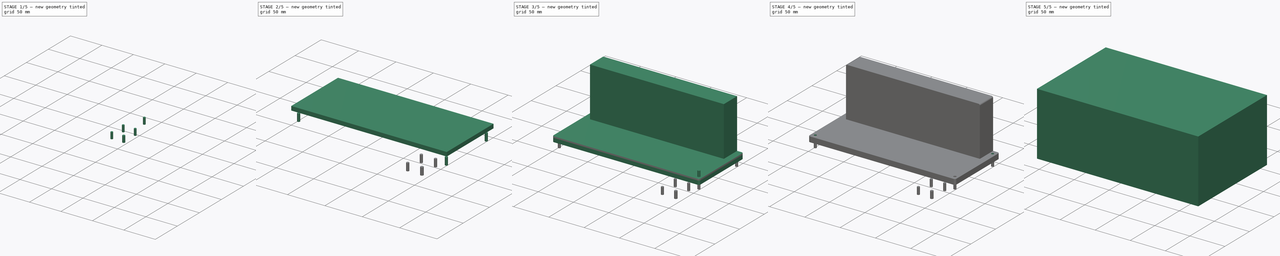
[diagram: build sequence overview — one tinted view per stage of 5, left to right]
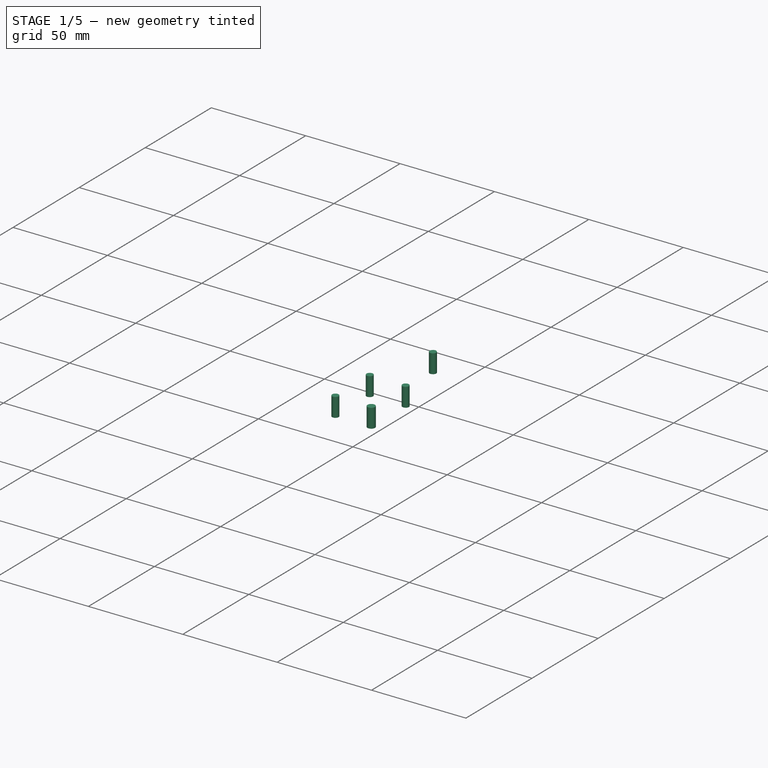
[diagram: stage 1 of 5 — iso view after this stage's code; geometry added in this stage tinted green]
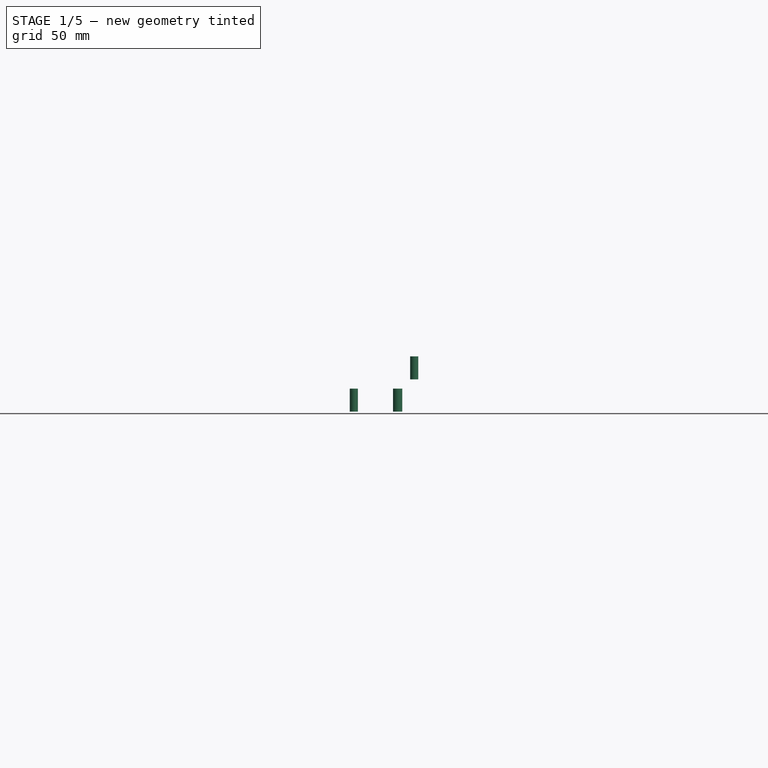
[diagram: stage 1 of 5 — front view after this stage's code; geometry added in this stage tinted green]
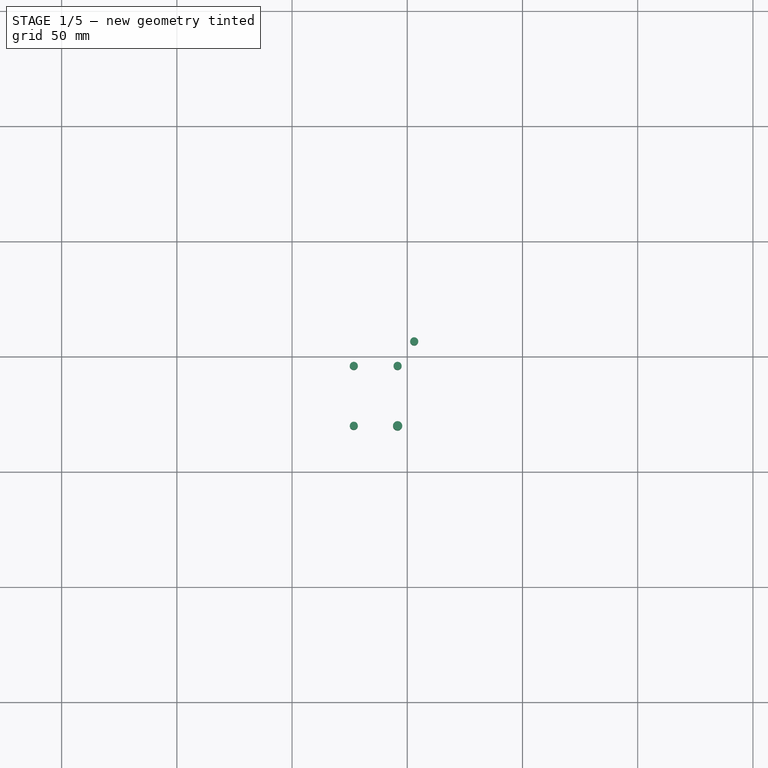
[diagram: stage 1 of 5 — top view after this stage's code; geometry added in this stage tinted green]
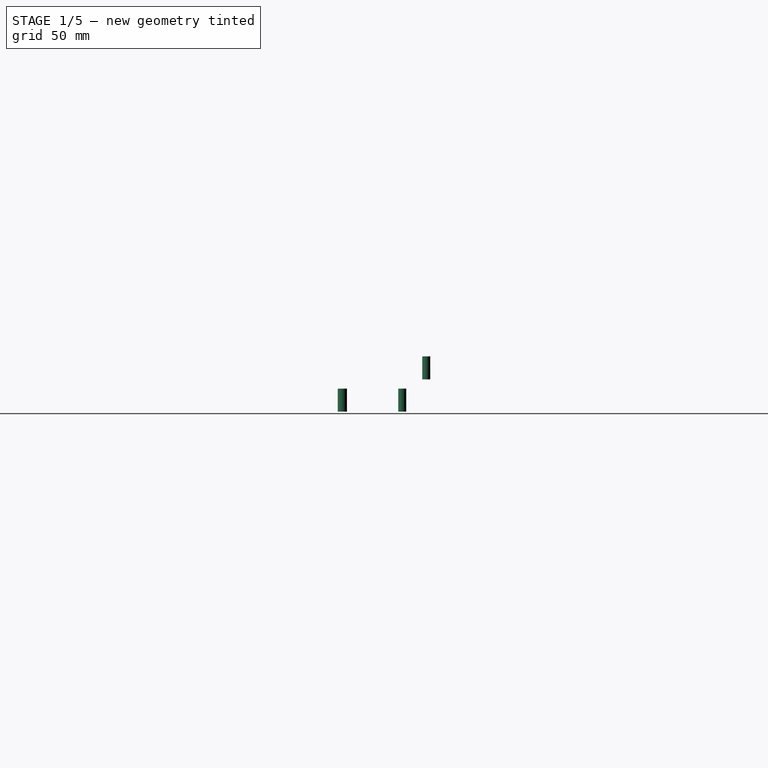
[diagram: stage 1 of 5 — right view after this stage's code; geometry added in this stage tinted green]
FCSTD DOCUMENT  (FreeCAD 0.21R33668 +7 (Git))
Label: OzoneModule_July_08_2024
License: All rights reserved
LicenseURL: https://en.wikipedia.org/wiki/All_rights_reserved
objects: Part::Cylinder×12, Part::Feature×9, Part::MultiFuse×7, Part::Box×4, Part::Fillet×4, Part::Cut×2, App::Part×1, Sketcher::SketchObject×1, Part::Extrusion×1
note: 40 computed .brp shape members not serialized (recipe doc carries the construction recipe); baked Part::Feature solids carry a one-line shape summary decoded from their .brp

FEATURE [Part::Cylinder] Cylinder007
  Angle = 360
  AttacherType = Attacher::AttachEngine3D
  FirstAngle = 0
  Height = 10
  Placement = pos=(203,6.4,0) rot=(0,0,1;0rad)
  Radius = 1.75
  SecondAngle = 0
FEATURE [Part::Cylinder] Cylinder008
  Angle = 360
  AttacherType = Attacher::AttachEngine3D
  FirstAngle = 0
  Height = 10
  Placement = pos=(195.8,-4,0) rot=(0,0,1;0rad)
  Radius = 1.75
  SecondAngle = 0
FEATURE [Part::Cylinder] Cylinder009
  Angle = 360
  AttacherType = Attacher::AttachEngine3D
  FirstAngle = 0
  Height = 10
  Placement = pos=(176.8,-4,0) rot=(0,0,1;0rad)
  Radius = 1.75
  SecondAngle = 0
FEATURE [Part::Cylinder] Cylinder010
  Angle = 360
  AttacherType = Attacher::AttachEngine3D
  FirstAngle = 0
  Height = 10
  Placement = pos=(176.8,-30,0) rot=(0,0,1;0rad)
  Radius = 1.75
  SecondAngle = 0
FEATURE [Part::Cylinder] Cylinder011
  Angle = 360
  AttacherType = Attacher::AttachEngine3D
  FirstAngle = 0
  Height = 10
  Placement = pos=(195.8,-30,0) rot=(0,0,1;0rad)
  Radius = 2
  SecondAngle = 0
FEATURE [Part::MultiFuse] Fusion005  label="Base_hole002"
  Placement = pos=(0,0,-14) rot=(0,0,1;0rad)
  Shapes = -> [Cylinder008,Cylinder009,Cylinder010,Cylinder011]
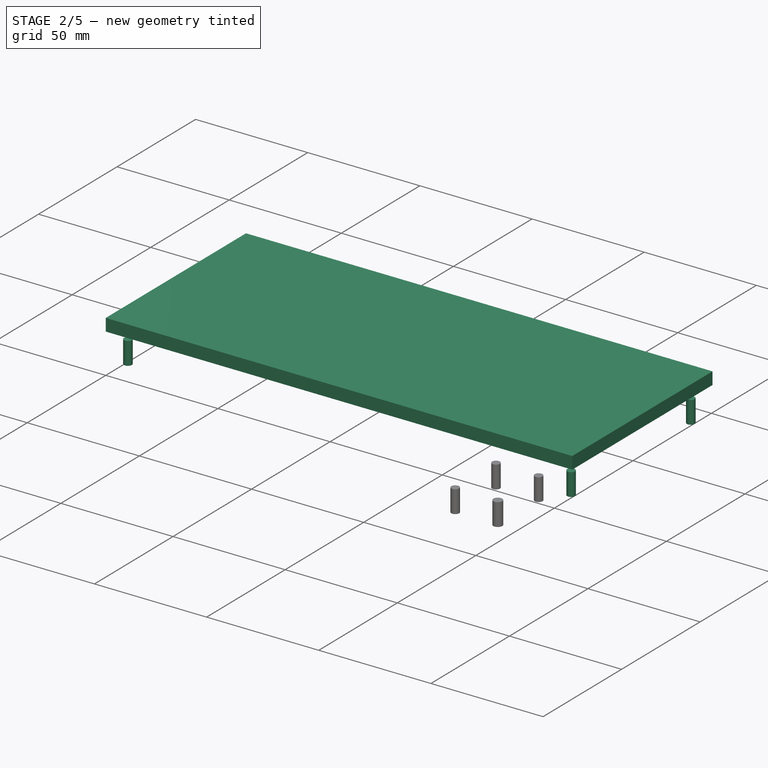
[diagram: stage 2 of 5 — iso view after this stage's code; geometry added in this stage tinted green]
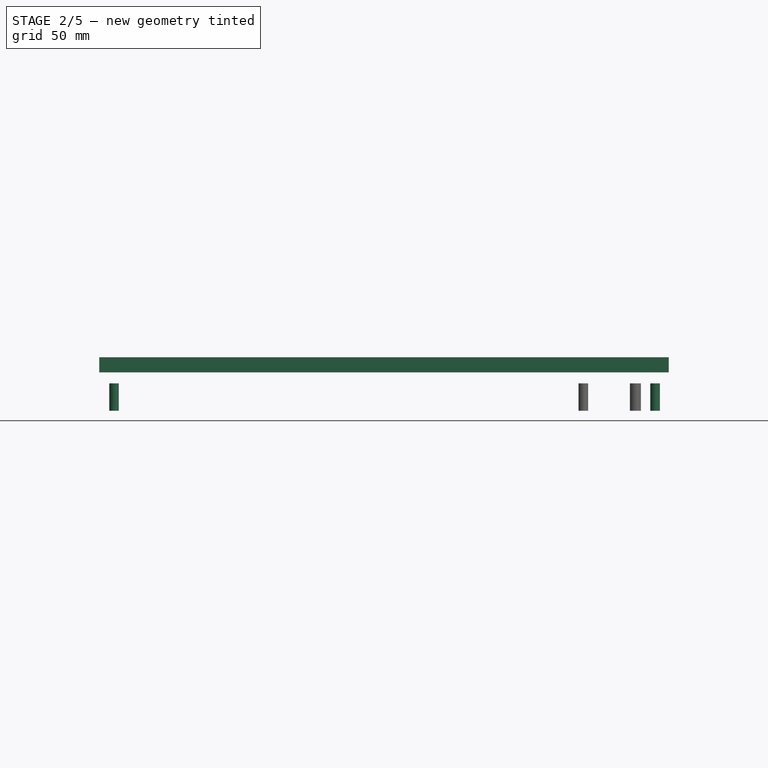
[diagram: stage 2 of 5 — front view after this stage's code; geometry added in this stage tinted green]
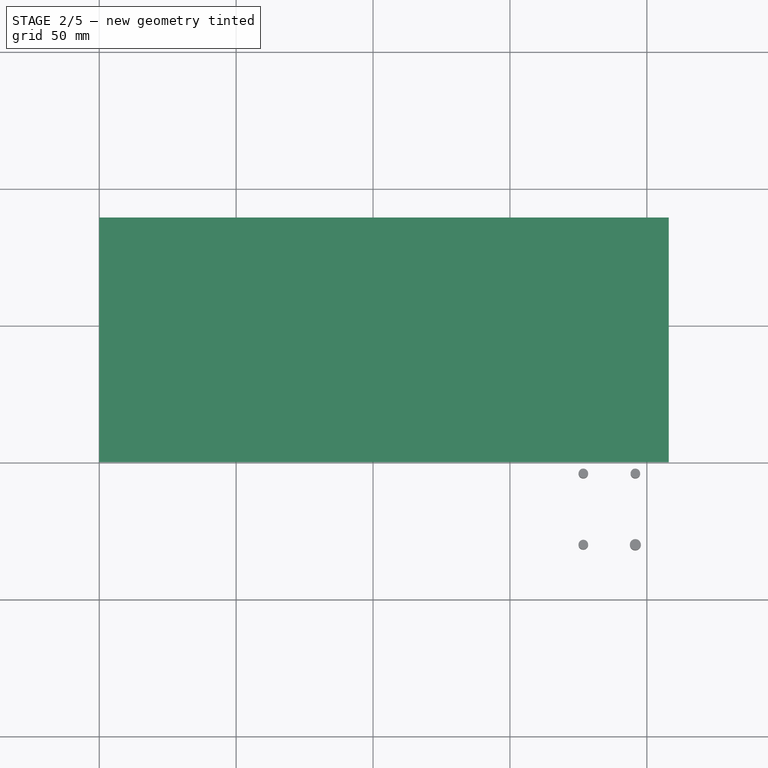
[diagram: stage 2 of 5 — top view after this stage's code; geometry added in this stage tinted green]
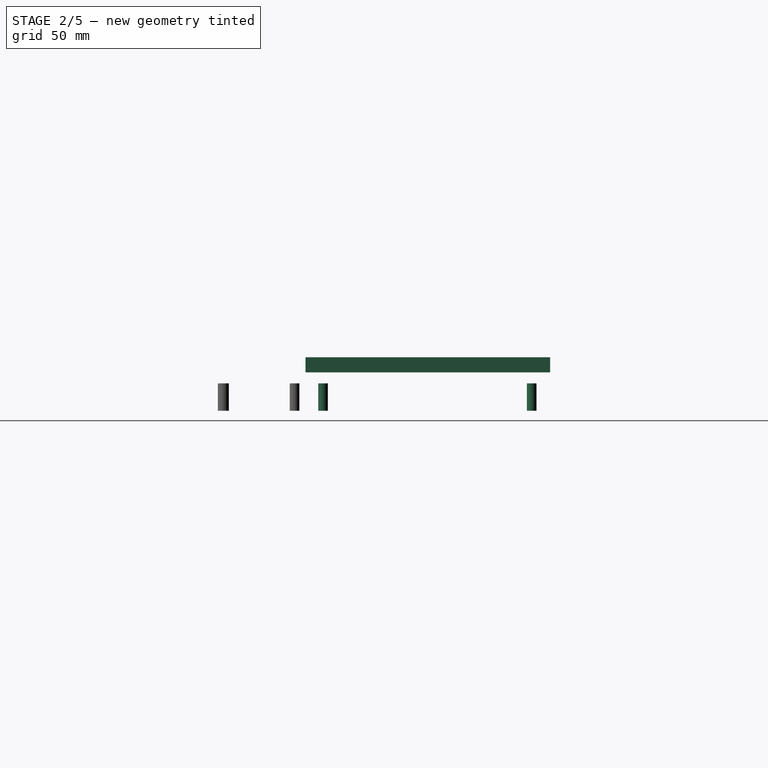
[diagram: stage 2 of 5 — right view after this stage's code; geometry added in this stage tinted green]
FEATURE [Part::Feature] Part__Feature004  label="051659-8_05358-PUMPE-_SW0001"
  shape: bbox 32.37 x 50.78 x 84.45 mm, 991 faces (baked)
FEATURE [Part::Feature] Part__Feature005  label="051659-8_05358-PUMPE-_SW0002"
  shape: bbox 4 x 4 x 0.751 mm, 31 faces (baked)
FEATURE [Part::Feature] Part__Feature006  label="051659-8_05358-PUMPE-_SW0003"
  shape: bbox 4 x 4 x 0.751 mm, 31 faces (baked)
FEATURE [Part::Feature] Part__Feature007  label="051659-8_05358-PUMPE-_SW0004"
  shape: bbox 4 x 4 x 0.751 mm, 31 faces (baked)
FEATURE [Part::Feature] Part__Feature008  label="051659-8_05358-PUMPE-_SW0005"
  shape: bbox 4 x 4 x 0.751 mm, 31 faces (baked)
FEATURE [App::Part] _51659_8_05358_PUMPE__SW0001  label="Pump"
  Group = -> [Part__Feature004,Part__Feature005,Part__Feature006,Part__Feature007,Part__Feature008]
  Origin = -> Origin
  Placement = pos=(183,-17,11) rot=(0.57735,0.57735,0.57735;2.0944rad)
FEATURE [Part::Box] Box002  label="Base_Board001"
  AttacherType = Attacher::AttachEngine3D
  Height = 5.5
  Length = 208
  Width = 89.3
FEATURE [Part::Cylinder] Cylinder004
  Angle = 360
  AttacherType = Attacher::AttachEngine3D
  FirstAngle = 0
  Height = 10
  Placement = pos=(5.4,6.4,0) rot=(0,0,1;0rad)
  Radius = 1.75
  SecondAngle = 0
FEATURE [Part::Cylinder] Cylinder005
  Angle = 360
  AttacherType = Attacher::AttachEngine3D
  FirstAngle = 0
  Height = 10
  Placement = pos=(5.4,82.6,0) rot=(0,0,1;0rad)
  Radius = 1.75
  SecondAngle = 0
FEATURE [Part::Cylinder] Cylinder006
  Angle = 360
  AttacherType = Attacher::AttachEngine3D
  FirstAngle = 0
  Height = 10
  Placement = pos=(203,82.6,0) rot=(0,0,1;0rad)
  Radius = 1.75
  SecondAngle = 0
FEATURE [Part::MultiFuse] Fusion004  label="Base_hole001"
  Placement = pos=(0,0,-14) rot=(0,0,1;0rad)
  Shapes = -> [Cylinder004,Cylinder005,Cylinder006,Cylinder007]
FEATURE [Part::MultiFuse] Fusion006  label="Base_plate_hole"
  Shapes = -> [Fusion004,Fusion005]
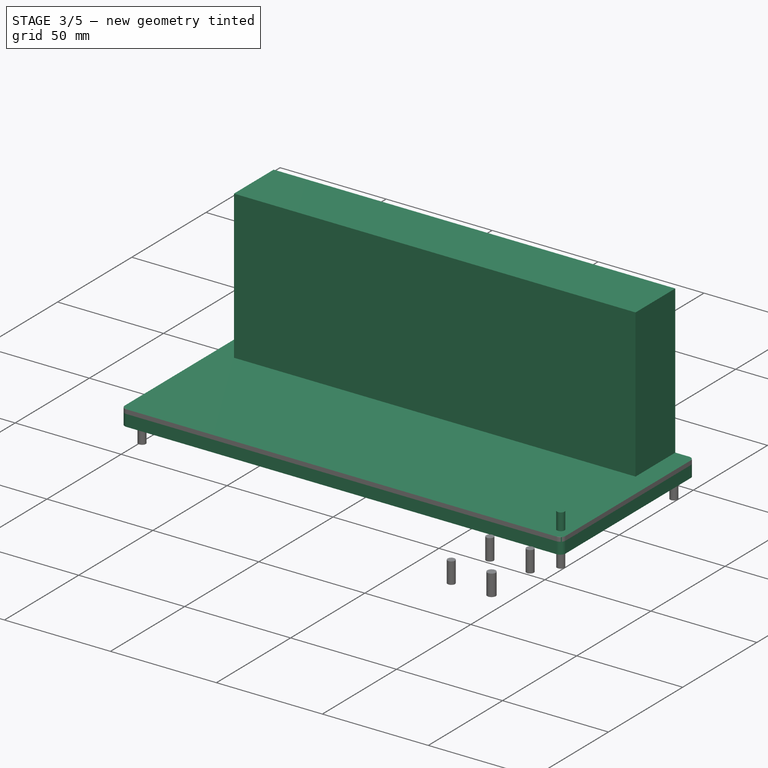
[diagram: stage 3 of 5 — iso view after this stage's code; geometry added in this stage tinted green]
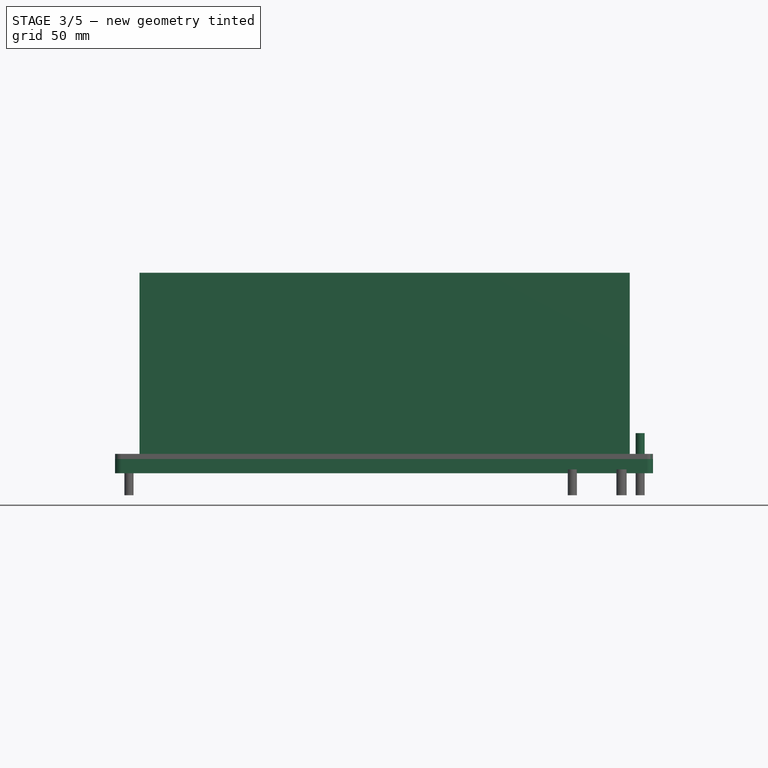
[diagram: stage 3 of 5 — front view after this stage's code; geometry added in this stage tinted green]
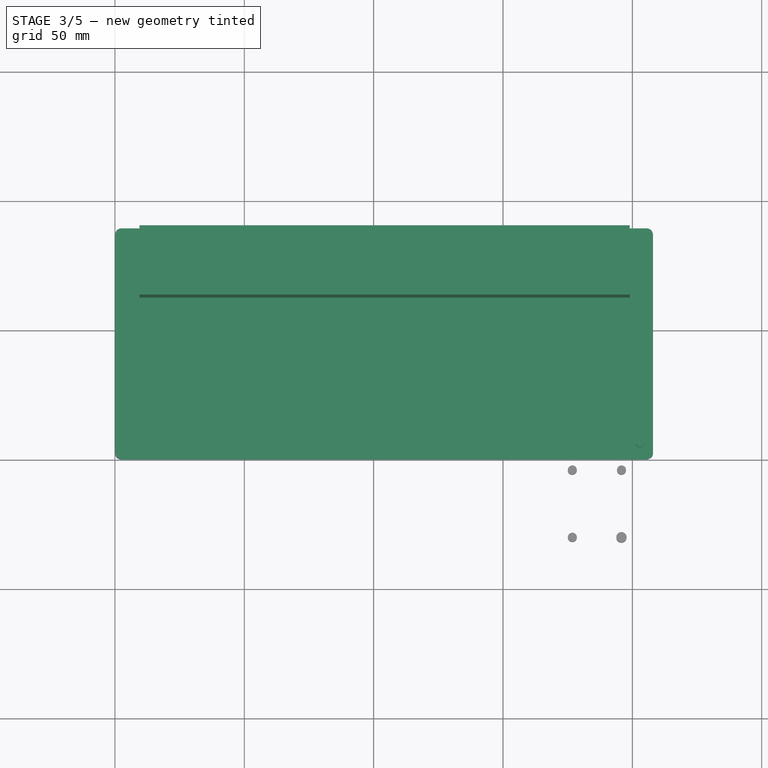
[diagram: stage 3 of 5 — top view after this stage's code; geometry added in this stage tinted green]
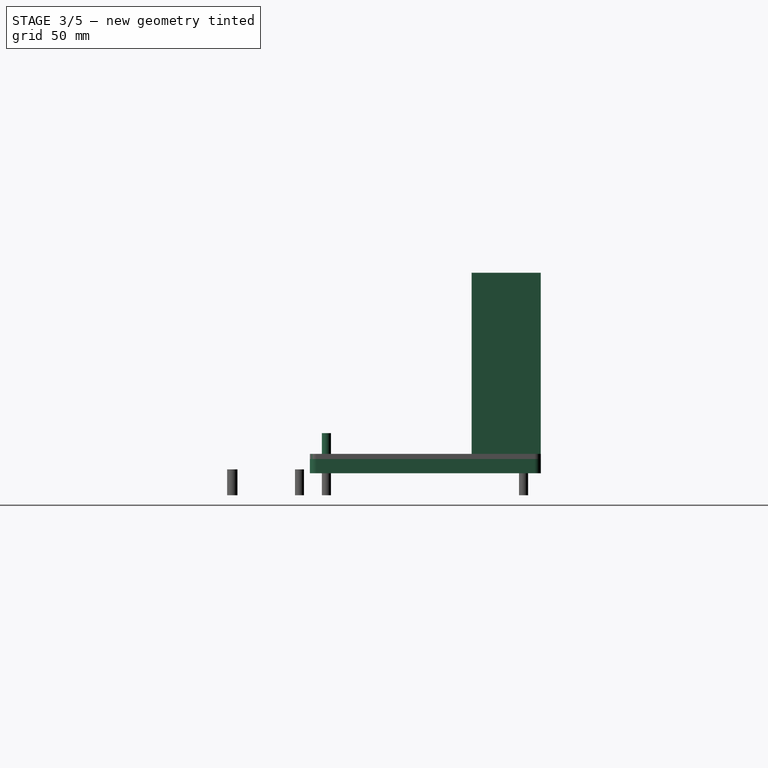
[diagram: stage 3 of 5 — right view after this stage's code; geometry added in this stage tinted green]
FEATURE [Part::Box] Box  label="Base_Board"
  AttacherType = Attacher::AttachEngine3D
  Height = 2
  Length = 208
  Width = 89.3
FEATURE [Part::Fillet] Fillet  label="Base"
  Base = -> Box
  Edges = 4 edges r=2.5: [Edge1,Edge3,Edge5,Edge7]
FEATURE [Part::Box] Box001  label="Ozone_monitor"
  AttacherType = Attacher::AttachEngine3D
  Height = 70
  Length = 189.5
  Placement = pos=(9.5,62.5,2) rot=(0,0,1;0rad)
  Width = 26.75
FEATURE [Part::Cylinder] Cylinder003
  Angle = 360
  AttacherType = Attacher::AttachEngine3D
  FirstAngle = 0
  Height = 10
  Placement = pos=(203,6.4,0) rot=(0,0,1;0rad)
  Radius = 1.75
  SecondAngle = 0
FEATURE [Part::MultiFuse] Fusion001  label="Ozone"
  Shapes = -> [Fillet,Box001]
FEATURE [Part::Fillet] Fillet002  label="BaseClearance"
  Base = -> Box002
  Edges = 4 edges r=2.5: [Edge1,Edge3,Edge5,Edge7]
  Placement = pos=(0,0,-5.5) rot=(0,0,1;0rad)
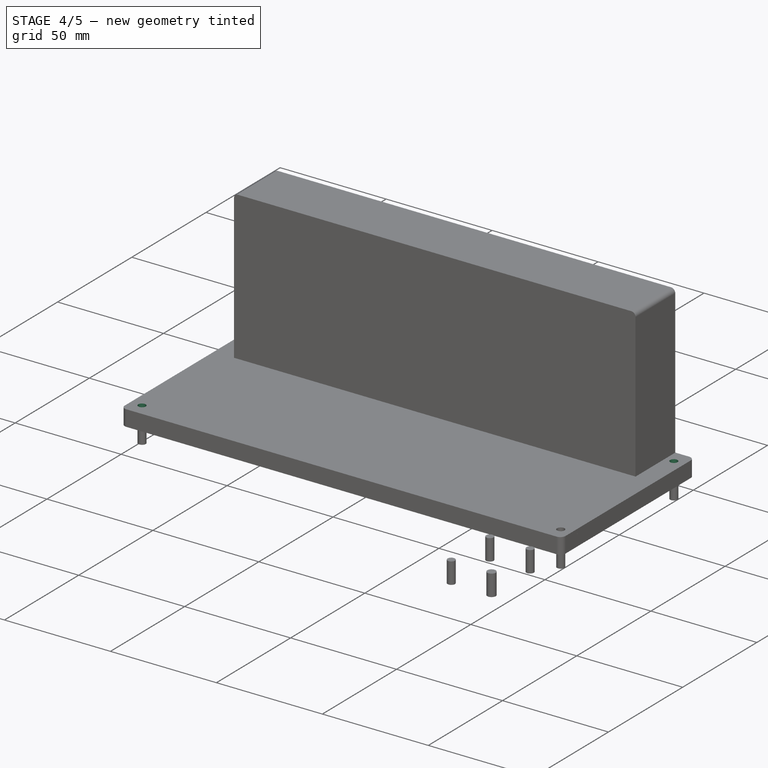
[diagram: stage 4 of 5 — iso view after this stage's code; geometry added in this stage tinted green]
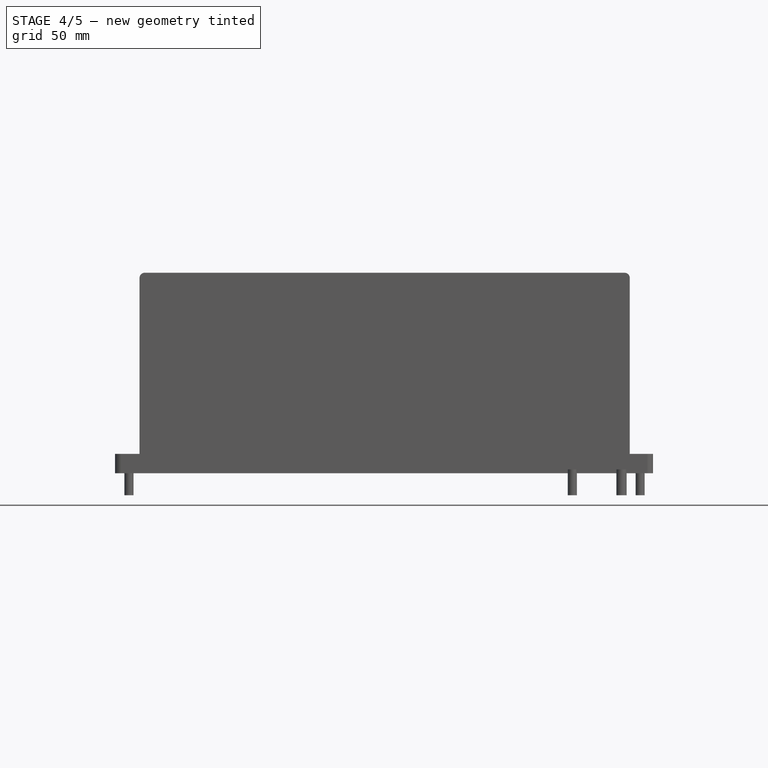
[diagram: stage 4 of 5 — front view after this stage's code; geometry added in this stage tinted green]
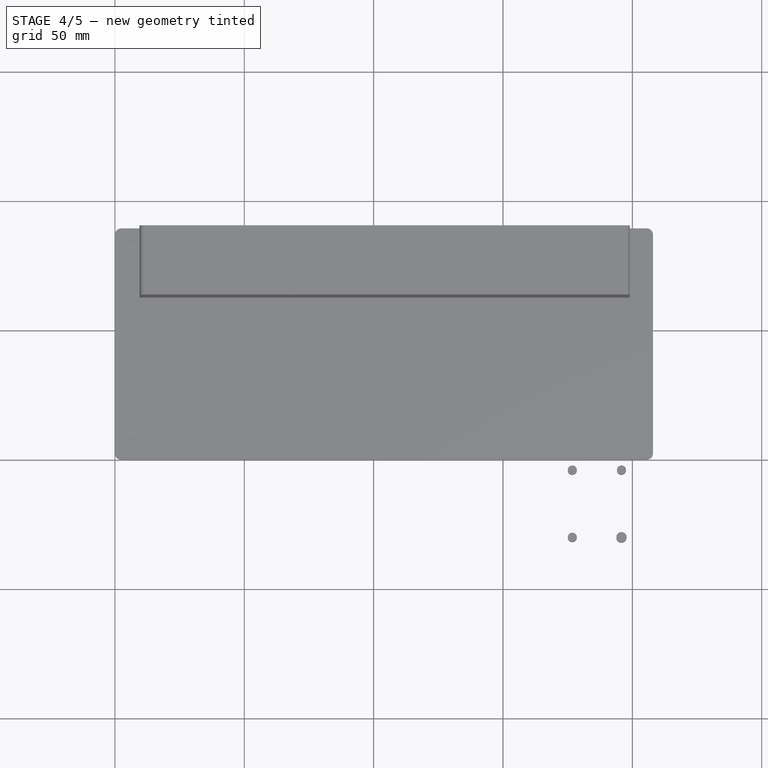
[diagram: stage 4 of 5 — top view after this stage's code; geometry added in this stage tinted green]
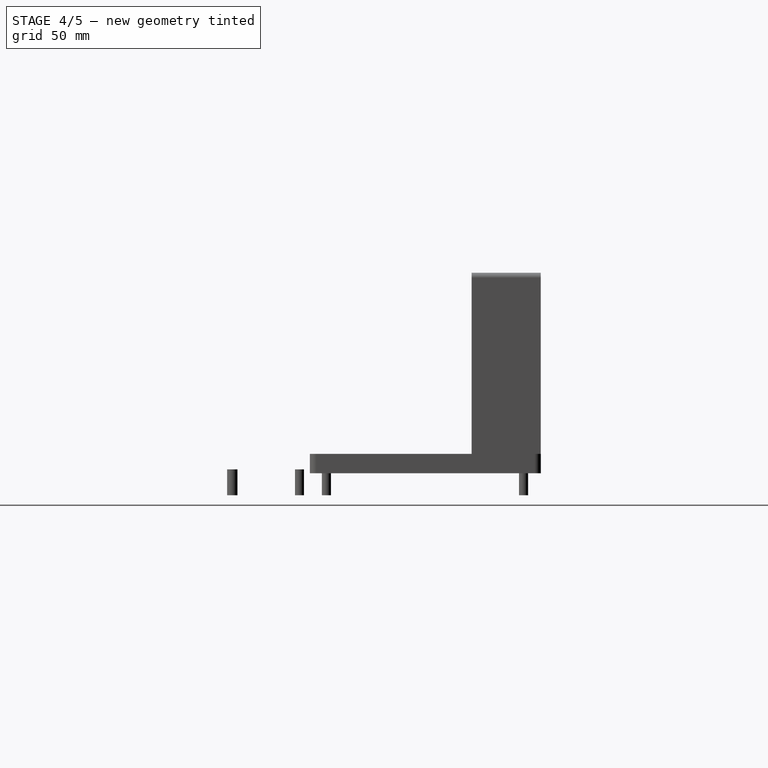
[diagram: stage 4 of 5 — right view after this stage's code; geometry added in this stage tinted green]
FEATURE [Part::Cylinder] Cylinder
  Angle = 360
  AttacherType = Attacher::AttachEngine3D
  FirstAngle = 0
  Height = 10
  Placement = pos=(5.4,6.4,0) rot=(0,0,1;0rad)
  Radius = 1.75
  SecondAngle = 0
FEATURE [Part::Cylinder] Cylinder001
  Angle = 360
  AttacherType = Attacher::AttachEngine3D
  FirstAngle = 0
  Height = 10
  Placement = pos=(5.4,82.6,0) rot=(0,0,1;0rad)
  Radius = 1.75
  SecondAngle = 0
FEATURE [Part::Cylinder] Cylinder002
  Angle = 360
  AttacherType = Attacher::AttachEngine3D
  FirstAngle = 0
  Height = 10
  Placement = pos=(203,82.6,0) rot=(0,0,1;0rad)
  Radius = 1.75
  SecondAngle = 0
FEATURE [Part::MultiFuse] Fusion  label="Base_hole"
  Placement = pos=(0,0,-4) rot=(0,0,1;0rad)
  Shapes = -> [Cylinder,Cylinder001,Cylinder002,Cylinder003]
FEATURE [Part::Cut] Cut  label="Ozone Module"
  Base = -> Fusion001
  Tool = -> Fusion
FEATURE [Part::Fillet] Fillet001  label="Ozone_Mod"
  Base = -> Cut
  Edges = 2 edges r=2: [Edge41,Edge47]
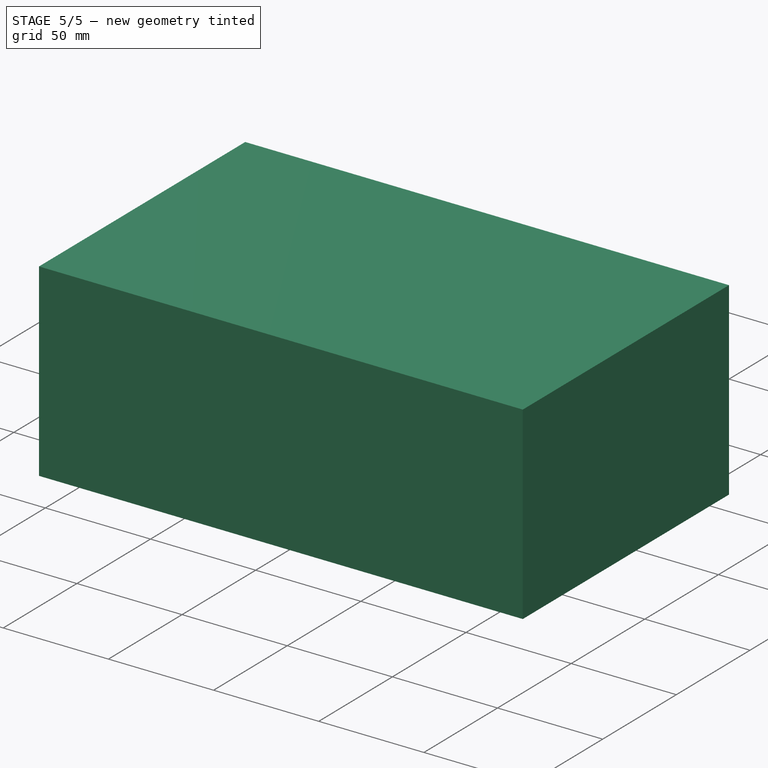
[diagram: stage 5 of 5 — iso view after this stage's code; geometry added in this stage tinted green]
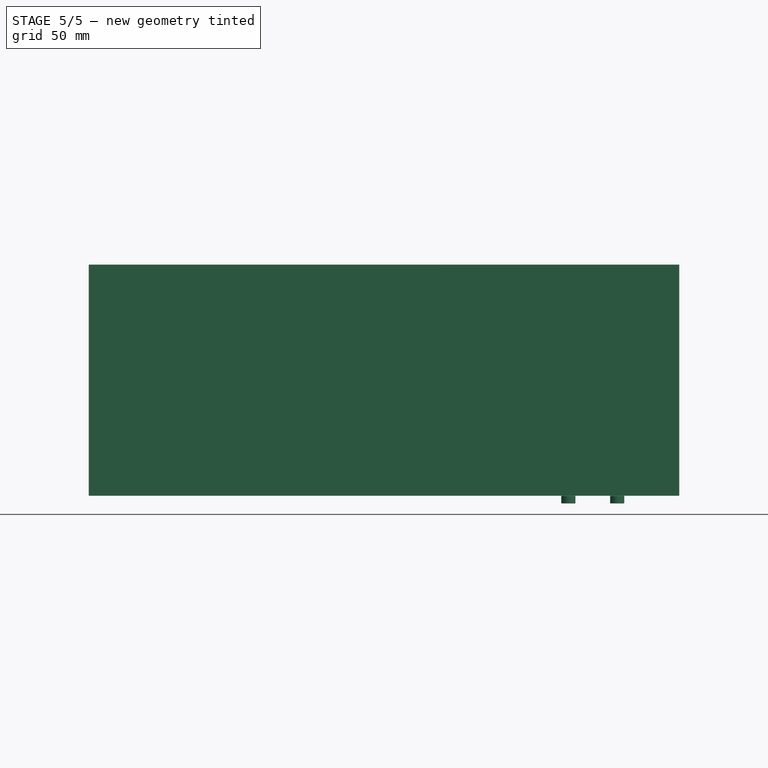
[diagram: stage 5 of 5 — front view after this stage's code; geometry added in this stage tinted green]
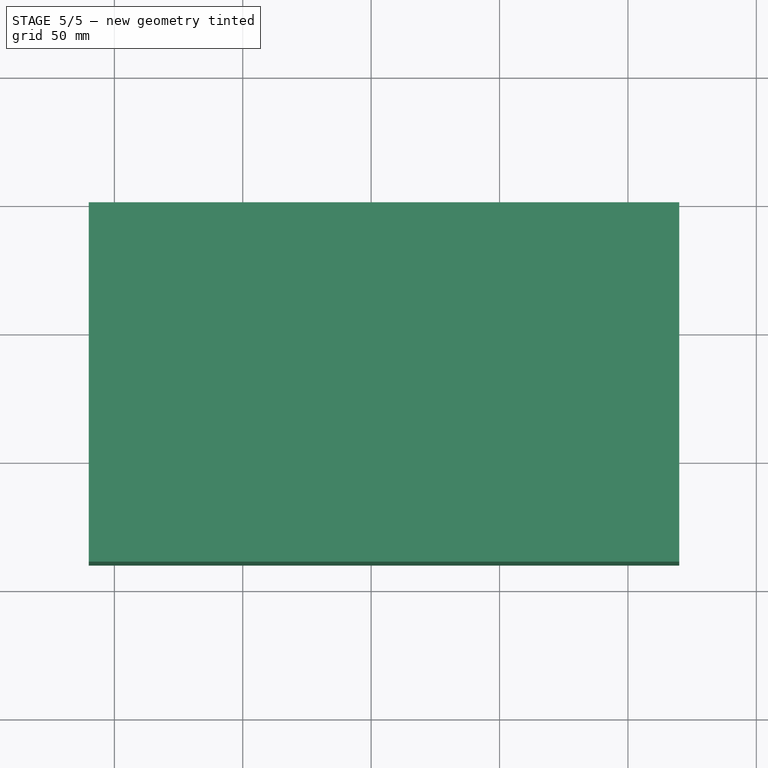
[diagram: stage 5 of 5 — top view after this stage's code; geometry added in this stage tinted green]
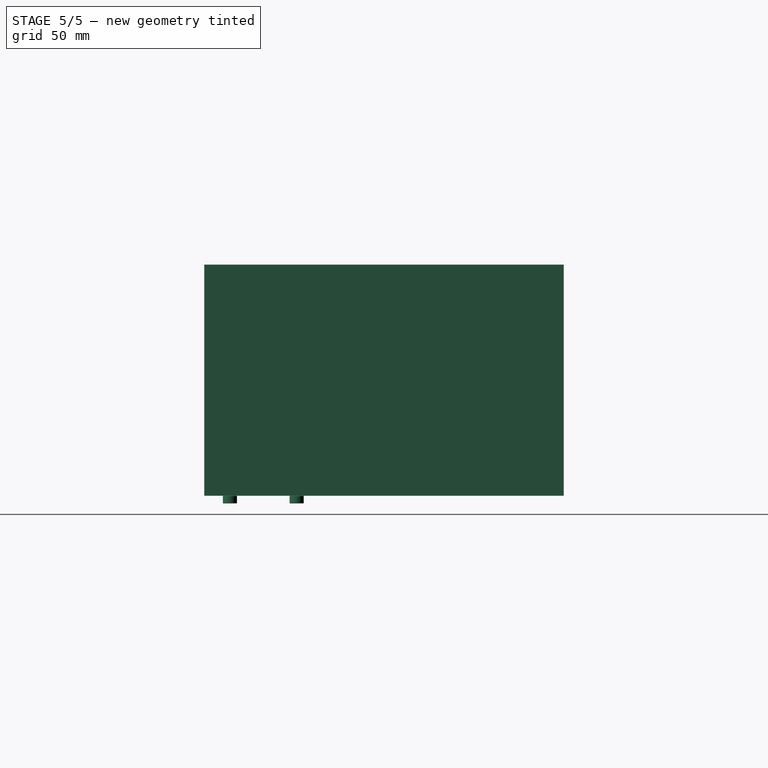
[diagram: stage 5 of 5 — right view after this stage's code; geometry added in this stage tinted green]
FEATURE [Part::Feature] Part__Feature  label="M3_14mm"
  Placement = pos=(195.8,-4,-6.5) rot=(0,1,0;3.14159rad)
  shape: bbox 5.501 x 5.501 x 17.29 mm, 84 faces (baked)
FEATURE [Part::Feature] Part__Feature009  label="M3_14mm001"
  Placement = pos=(176.8,-4,-6.5) rot=(0,1,0;3.14159rad)
  shape: bbox 5.501 x 5.501 x 17.29 mm, 84 faces (baked)
FEATURE [Part::Feature] Part__Feature010  label="M3_14mm002"
  Placement = pos=(176.8,-30,-6.5) rot=(0,1,0;3.14159rad)
  shape: bbox 5.501 x 5.501 x 17.29 mm, 84 faces (baked)
FEATURE [Part::Feature] Part__Feature011  label="M3_14mm003"
  Placement = pos=(195.8,-30,-6.5) rot=(0,1,0;3.14159rad)
  shape: bbox 5.501 x 5.501 x 17.29 mm, 84 faces (baked)
FEATURE [Part::MultiFuse] Fusion002  label="Pump_screw_M3"
  Shapes = -> [Part__Feature,Part__Feature009,Part__Feature010,Part__Feature011]
FEATURE [Part::MultiFuse] Fusion003  label="Ozone_Mod_with_Pump"
  Shapes = -> [Fillet001,_51659_8_05358_PUMPE__SW0001,Fillet002]
FEATURE [Sketcher::SketchObject] Sketch
  FullyConstrained = false
  MapMode = 2
  Support = -> [Fusion003]
  sketch-geometry (6):
    g0: LineSegment StartX=-7.68832 StartY=-7.55328 StartZ=0 EndX=110.018 EndY=-7.55328 EndZ=0
    g1: LineSegment StartX=110.018 StartY=-7.55328 StartZ=0 EndX=110.018 EndY=-39.4926 EndZ=0
    g2: LineSegment StartX=110.018 StartY=-39.4926 StartZ=0 EndX=217.897 EndY=-39.4926 EndZ=0
    g3: LineSegment StartX=217.897 StartY=-39.4926 StartZ=0 EndX=217.897 EndY=98.3155 EndZ=0
    g4: LineSegment StartX=217.897 StartY=98.3155 StartZ=0 EndX=-7.68832 EndY=98.3155 EndZ=0
    g5: LineSegment StartX=-7.68832 StartY=98.3155 StartZ=0 EndX=-7.68832 EndY=-7.55328 EndZ=0
  constraints (11):
    c: Horizontal(g0)
    c: Coincident(g1,g0)
    c: Vertical(g1)
    c: Coincident(g2,g1)
    c: Horizontal(g2)
    c: Coincident(g3,g2)
    c: Vertical(g3)
    c: Coincident(g4,g3)
    c: Horizontal(g4)
    c: Coincident(g5,g0)
    c: Vertical(g5)
FEATURE [Part::Extrusion] Extrude  label="Base_plate"
  Base = -> Sketch
  Dir = (0,0,7)
  DirMode = 0
  FaceMakerClass = Part::FaceMakerBullseye
  LengthFwd = 6
  LengthRev = 0
  Placement = pos=(0,0,-11.5) rot=(0,0,1;0rad)
  Solid = true
  Symmetric = false
FEATURE [Part::Cut] Cut001  label="Base_Plate"
  Base = -> Extrude
  Tool = -> Fusion006
FEATURE [Part::Box] Box003  label="Cube"
  AttacherType = Attacher::AttachEngine3D
  Height = 90
  Length = 230
  Placement = pos=(-10,-40,-12) rot=(0,0,1;0rad)
  Width = 140
FEATURE [Part::Fillet] Fillet003  label="BasePlate"
  Base = -> Cut001
  Edges = 18 edges: [Edge1 r=3,Edge2 r=3,Edge3 r=1,Edge4 r=1,Edge5 r=3,Edge6 r=1,Edge7 r=1,Edge8 r=3,Edge9 r=1,Edge10 r=1,Edge11 r=1,Edge12 r=1,Edge13 r=1,Edge22 r=1,Edge23 r=1,Edge24 r=1,Edge33 r=3,Edge34 r=3]
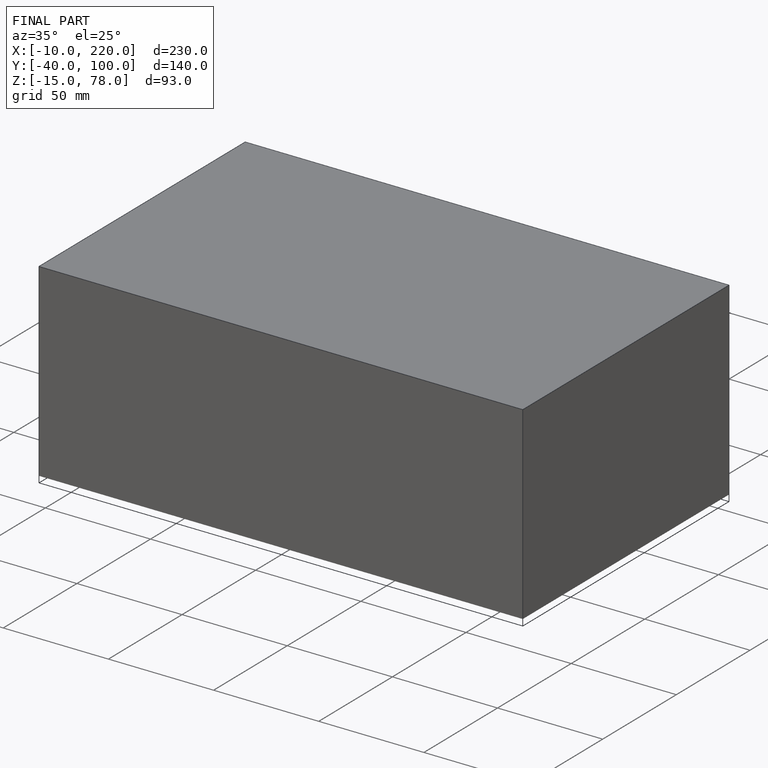
[diagram: finished part — iso view with bounding-box wireframe]
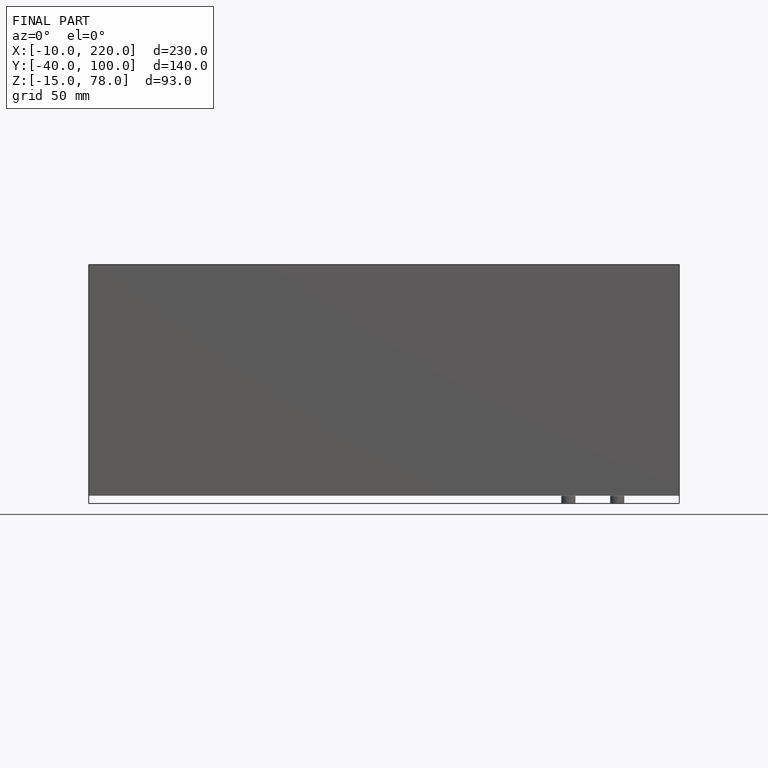
[diagram: finished part — front view with bounding-box wireframe]
